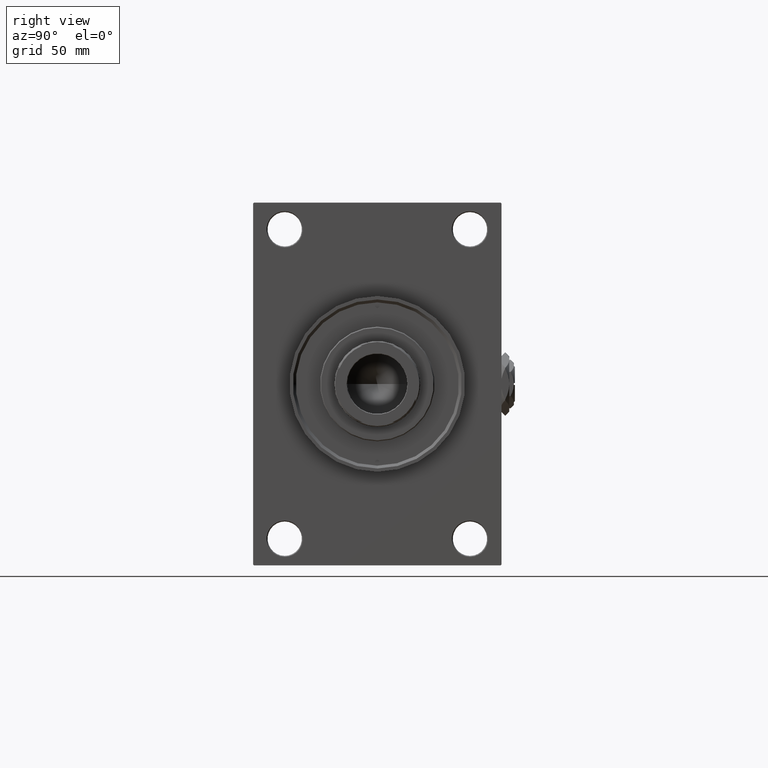
[diagram: clean part render]
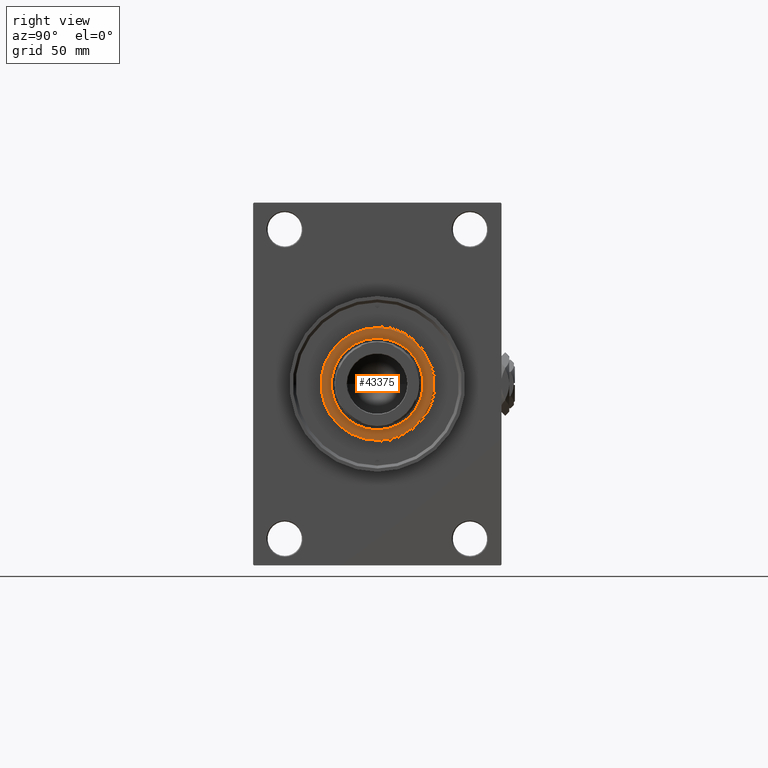
[diagram: same view with one face highlighted and labeled with its STEP entity id]
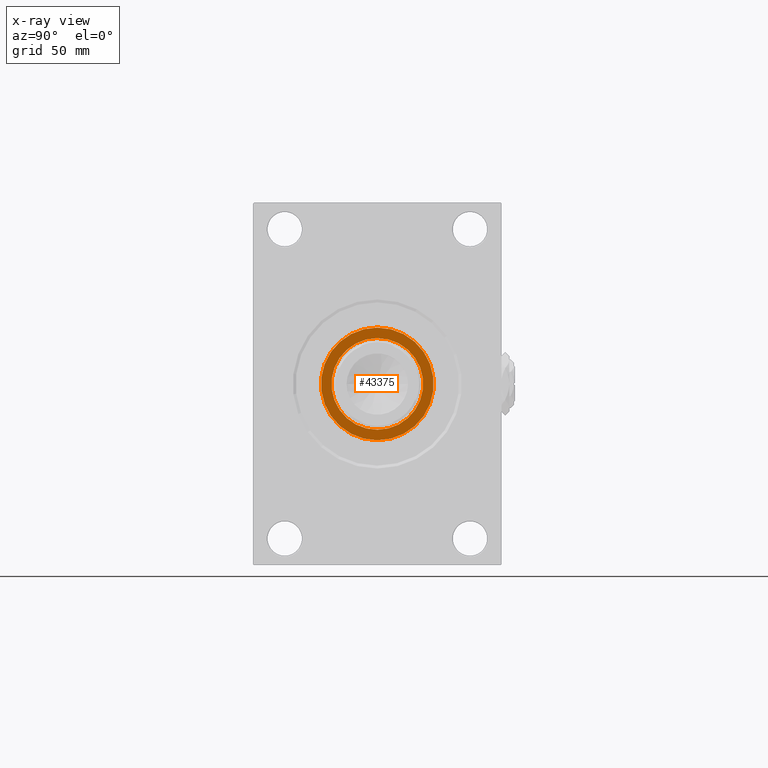
[diagram: x-ray of the same camera — body ghosted, the highlighted face saturated]
A machine part, right view. The second image highlights one B-rep face of the part: STEP entity #43375.
The next image is the same camera in x-ray: the body ghosted, the highlighted face saturated — about 0% of this face is hidden behind the body in this view.
In plain terms, the highlighted planar face has unit normal (1, -0, -0).
Its self-contained STEP definition (entity closure, byte-faithful):
#356 = CIRCLE ( 'NONE', #15663, 29.50000000000000000 ) ;
#1967 = DIRECTION ( 'NONE',  ( 1.000000000000000000, 0.000000000000000000, 0.000000000000000000 ) ) ;
#2753 = DIRECTION ( 'NONE',  ( 0.000000000000000000, 0.000000000000000000, 1.000000000000000000 ) ) ;
#2999 = CARTESIAN_POINT ( 'NONE',  ( 0.000000000000000000, 0.000000000000000000, 52.25999999999999801 ) ) ;
#5717 = DIRECTION ( 'NONE',  ( 0.000000000000000000, 0.000000000000000000, 1.000000000000000000 ) ) ;
#5759 = EDGE_LOOP ( 'NONE', ( #49917, #14466 ) ) ;
#8300 = VERTEX_POINT ( 'NONE', #30244 ) ;
#9762 = ORIENTED_EDGE ( 'NONE', *, *, #27251, .T. ) ;
#13846 = CIRCLE ( 'NONE', #38869, 29.50000000000000000 ) ;
#14344 = VERTEX_POINT ( 'NONE', #22073 ) ;
#14466 = ORIENTED_EDGE ( 'NONE', *, *, #43090, .F. ) ;
#15663 = AXIS2_PLACEMENT_3D ( 'NONE', #28984, #5717, #1967 ) ;
#16756 = DIRECTION ( 'NONE',  ( 0.000000000000000000, 0.000000000000000000, 1.000000000000000000 ) ) ;
#17307 = CARTESIAN_POINT ( 'NONE',  ( 29.50000000000000000, 3.643324227463375391E-15, 52.25999999999999801 ) ) ;
#17614 = DIRECTION ( 'NONE',  ( 0.000000000000000000, 0.000000000000000000, 1.000000000000000000 ) ) ;
#18876 = CARTESIAN_POINT ( 'NONE',  ( -24.00000000000000355, 2.939152317953648289E-15, 52.25999999999999801 ) ) ;
#21158 = PLANE ( 'NONE',  #27928 ) ;
#21467 = DIRECTION ( 'NONE',  ( 1.000000000000000000, 0.000000000000000000, 0.000000000000000000 ) ) ;
#22073 = CARTESIAN_POINT ( 'NONE',  ( 24.00000000000000355, 0.000000000000000000, 52.25999999999999801 ) ) ;
#23870 = AXIS2_PLACEMENT_3D ( 'NONE', #29060, #40207, #21467 ) ;
#27251 = EDGE_CURVE ( 'NONE', #8300, #31379, #13846, .T. ) ;
#27928 = AXIS2_PLACEMENT_3D ( 'NONE', #43956, #17614, #39895 ) ;
#28513 = FACE_OUTER_BOUND ( 'NONE', #32416, .T. ) ;
#28660 = DIRECTION ( 'NONE',  ( 1.000000000000000000, 0.000000000000000000, 0.000000000000000000 ) ) ;
#28984 = CARTESIAN_POINT ( 'NONE',  ( 0.000000000000000000, 0.000000000000000000, 52.25999999999999801 ) ) ;
#29060 = CARTESIAN_POINT ( 'NONE',  ( 0.000000000000000000, 0.000000000000000000, 52.25999999999999801 ) ) ;
#30244 = CARTESIAN_POINT ( 'NONE',  ( -29.50000000000000000, 0.000000000000000000, 52.25999999999999801 ) ) ;
#31379 = VERTEX_POINT ( 'NONE', #17307 ) ;
#31945 = CARTESIAN_POINT ( 'NONE',  ( 0.000000000000000000, 0.000000000000000000, 52.25999999999999801 ) ) ;
#32416 = EDGE_LOOP ( 'NONE', ( #9762, #44279 ) ) ;
#33338 = DIRECTION ( 'NONE',  ( 1.000000000000000000, 0.000000000000000000, 0.000000000000000000 ) ) ;
#36050 = EDGE_CURVE ( 'NONE', #31379, #8300, #356, .T. ) ;
#36818 = CIRCLE ( 'NONE', #23870, 24.00000000000000355 ) ;
#38630 = AXIS2_PLACEMENT_3D ( 'NONE', #31945, #16756, #28660 ) ;
#38869 = AXIS2_PLACEMENT_3D ( 'NONE', #2999, #2753, #33338 ) ;
#39895 = DIRECTION ( 'NONE',  ( 1.000000000000000000, 0.000000000000000000, -0.000000000000000000 ) ) ;
#40207 = DIRECTION ( 'NONE',  ( 0.000000000000000000, 0.000000000000000000, 1.000000000000000000 ) ) ;
#43090 = EDGE_CURVE ( 'NONE', #44287, #14344, #36818, .T. ) ;
#43375 = ADVANCED_FACE ( 'NONE', ( #48003, #28513 ), #21158, .T. ) ;
#43956 = CARTESIAN_POINT ( 'NONE',  ( 0.000000000000000000, 0.000000000000000000, 52.25999999999999801 ) ) ;
#44279 = ORIENTED_EDGE ( 'NONE', *, *, #36050, .T. ) ;
#44287 = VERTEX_POINT ( 'NONE', #18876 ) ;
#44324 = CIRCLE ( 'NONE', #38630, 24.00000000000000355 ) ;
#46785 = EDGE_CURVE ( 'NONE', #14344, #44287, #44324, .T. ) ;
#48003 = FACE_BOUND ( 'NONE', #5759, .T. ) ;
#49917 = ORIENTED_EDGE ( 'NONE', *, *, #46785, .F. ) ;